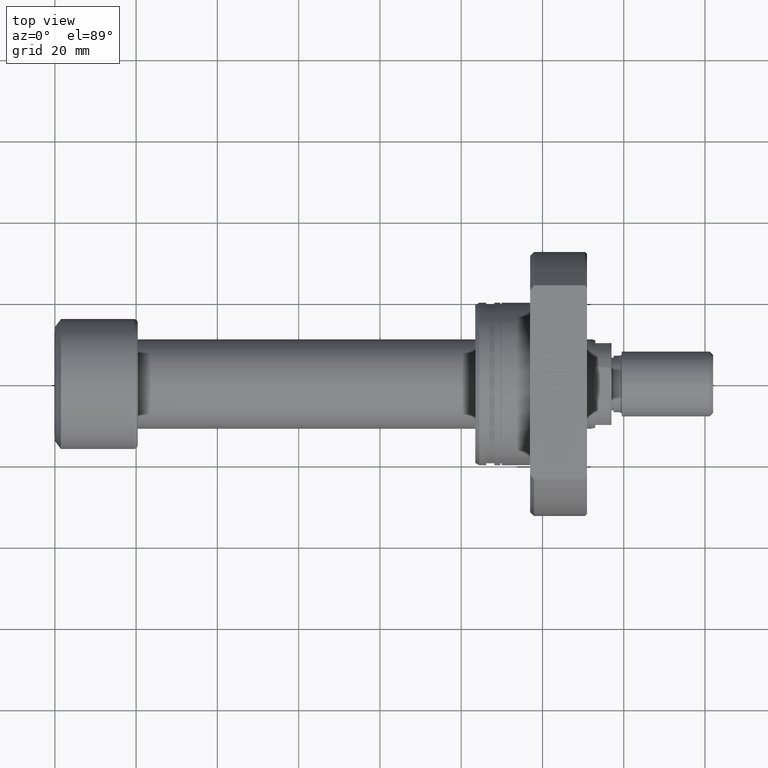
[diagram: clean part render]
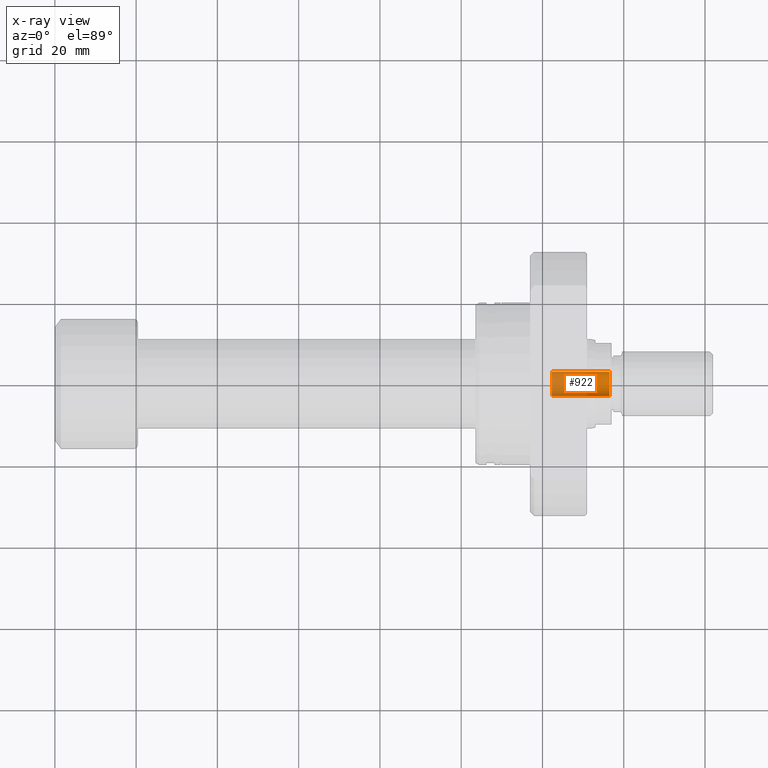
[diagram: x-ray — body ghosted, one internal face saturated and labeled with its STEP entity id]
A machine part, top view, then the same camera in x-ray: the body is ghosted and one INTERNAL B-rep face — a face not visible from any outside direction — is saturated and labeled: STEP entity #922.
In plain terms, the highlighted cylindrical surface (edge-blend (fillet) strip) has radius 3 mm, axis along (1, -0, 0).
Its self-contained STEP definition (entity closure, byte-faithful):
#46 = CARTESIAN_POINT ( 'NONE',  ( 122.2999999999999261, -3.000000000002691625, 3.673940397442873381E-16 ) ) ;
#93 = FACE_OUTER_BOUND ( 'NONE', #3591, .T. ) ;
#329 = CARTESIAN_POINT ( 'NONE',  ( 136.5000000000000853, 2.999999999998402167, 0.000000000000000000 ) ) ;
#330 = CARTESIAN_POINT ( 'NONE',  ( 122.2999999999999261, -3.000000000002691625, 3.673940397442873381E-16 ) ) ;
#464 = VERTEX_POINT ( 'NONE', #935 ) ;
#568 = EDGE_CURVE ( 'NONE', #464, #651, #2563, .T. ) ;
#596 = ORIENTED_EDGE ( 'NONE', *, *, #568, .F. ) ;
#604 = DIRECTION ( 'NONE',  ( 1.000000000000000000, -1.657264799492230625E-14, 0.000000000000000000 ) ) ;
#637 = EDGE_CURVE ( 'NONE', #2991, #464, #3251, .T. ) ;
#651 = VERTEX_POINT ( 'NONE', #329 ) ;
#736 = DIRECTION ( 'NONE',  ( 1.850371707708184552E-14, 1.000000000000000000, 0.000000000000000000 ) ) ;
#922 = ADVANCED_FACE ( 'NONE', ( #93 ), #2382, .F. ) ;
#931 = AXIS2_PLACEMENT_3D ( 'NONE', #1853, #2158, #736 ) ;
#935 = CARTESIAN_POINT ( 'NONE',  ( 122.3000000000000398, 2.999999999998637534, 0.000000000000000000 ) ) ;
#1112 = EDGE_CURVE ( 'NONE', #2991, #2976, #2300, .T. ) ;
#1114 = DIRECTION ( 'NONE',  ( 1.000000000000000000, -1.657264799492230625E-14, -0.000000000000000000 ) ) ;
#1169 = DIRECTION ( 'NONE',  ( -1.850371707708184552E-14, -1.000000000000000000, 0.000000000000000000 ) ) ;
#1215 = CARTESIAN_POINT ( 'NONE',  ( 122.2999999999999829, -2.026834849778997506E-12, 0.000000000000000000 ) ) ;
#1657 = AXIS2_PLACEMENT_3D ( 'NONE', #1215, #604, #2631 ) ;
#1709 = VECTOR ( 'NONE', #2615, 1000.000000000000000 ) ;
#1853 = CARTESIAN_POINT ( 'NONE',  ( 122.2999999999999829, -2.026834849778997506E-12, 0.000000000000000000 ) ) ;
#1998 = DIRECTION ( 'NONE',  ( 1.000000000000000000, -1.657264799492222105E-14, 0.000000000000000000 ) ) ;
#2158 = DIRECTION ( 'NONE',  ( 1.000000000000000000, -1.657264799492230625E-14, -0.000000000000000000 ) ) ;
#2300 = LINE ( 'NONE', #46, #1709 ) ;
#2325 = CARTESIAN_POINT ( 'NONE',  ( 136.5000000000000284, -2.262166451306895096E-12, 0.000000000000000000 ) ) ;
#2382 = CYLINDRICAL_SURFACE ( 'NONE', #931, 3.000000000000664357 ) ;
#2563 = LINE ( 'NONE', #2815, #3368 ) ;
#2615 = DIRECTION ( 'NONE',  ( 1.000000000000000000, -1.657264799492230625E-14, -0.000000000000000000 ) ) ;
#2631 = DIRECTION ( 'NONE',  ( 1.850371707708184552E-14, 1.000000000000000000, 0.000000000000000000 ) ) ;
#2774 = CARTESIAN_POINT ( 'NONE',  ( 136.4999999999999716, -3.000000000002926104, 3.673940397443016855E-16 ) ) ;
#2815 = CARTESIAN_POINT ( 'NONE',  ( 122.3000000000000398, 2.999999999998637534, 0.000000000000000000 ) ) ;
#2844 = AXIS2_PLACEMENT_3D ( 'NONE', #2325, #1998, #1169 ) ;
#2915 = ORIENTED_EDGE ( 'NONE', *, *, #1112, .T. ) ;
#2976 = VERTEX_POINT ( 'NONE', #2774 ) ;
#2991 = VERTEX_POINT ( 'NONE', #330 ) ;
#3130 = EDGE_CURVE ( 'NONE', #2976, #651, #3262, .T. ) ;
#3251 = CIRCLE ( 'NONE', #1657, 3.000000000000664357 ) ;
#3262 = CIRCLE ( 'NONE', #2844, 3.000000000000664357 ) ;
#3368 = VECTOR ( 'NONE', #1114, 1000.000000000000000 ) ;
#3565 = ORIENTED_EDGE ( 'NONE', *, *, #3130, .T. ) ;
#3591 = EDGE_LOOP ( 'NONE', ( #3665, #2915, #3565, #596 ) ) ;
#3665 = ORIENTED_EDGE ( 'NONE', *, *, #637, .F. ) ;